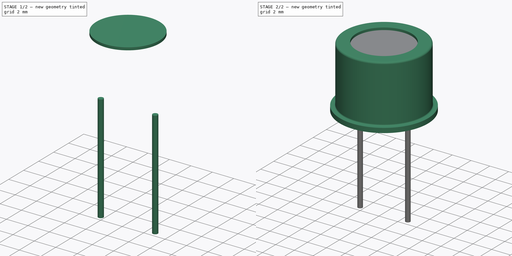
[diagram: build sequence overview — one tinted view per stage of 2, left to right]
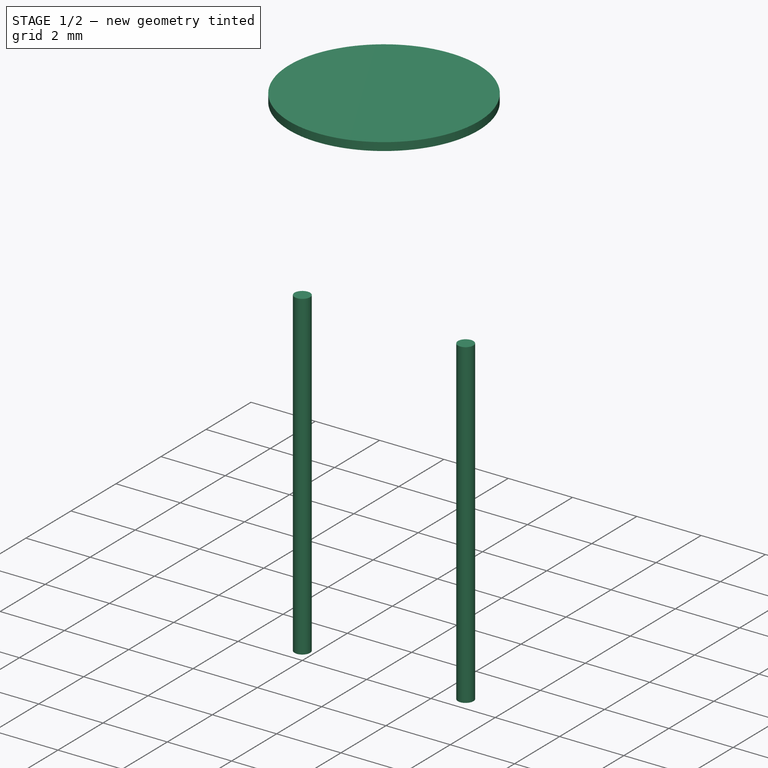
[diagram: stage 1 of 2 — iso view after this stage's code; geometry added in this stage tinted green]
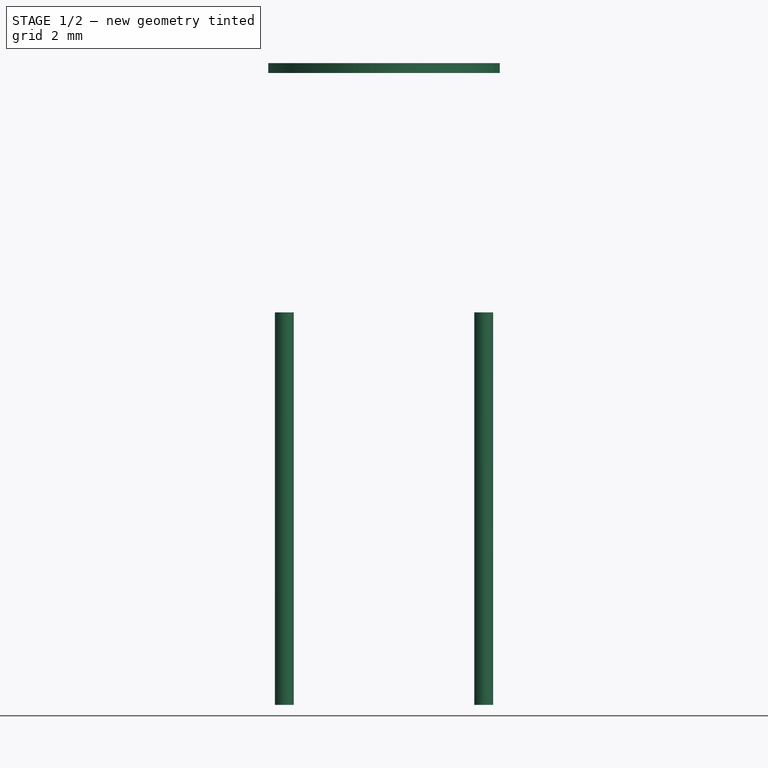
[diagram: stage 1 of 2 — front view after this stage's code; geometry added in this stage tinted green]
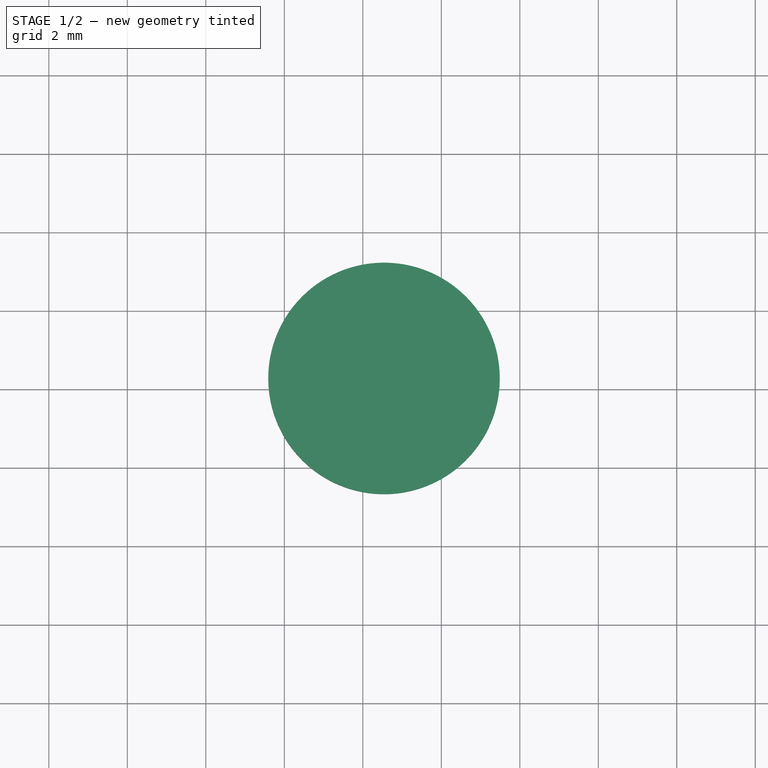
[diagram: stage 1 of 2 — top view after this stage's code; geometry added in this stage tinted green]
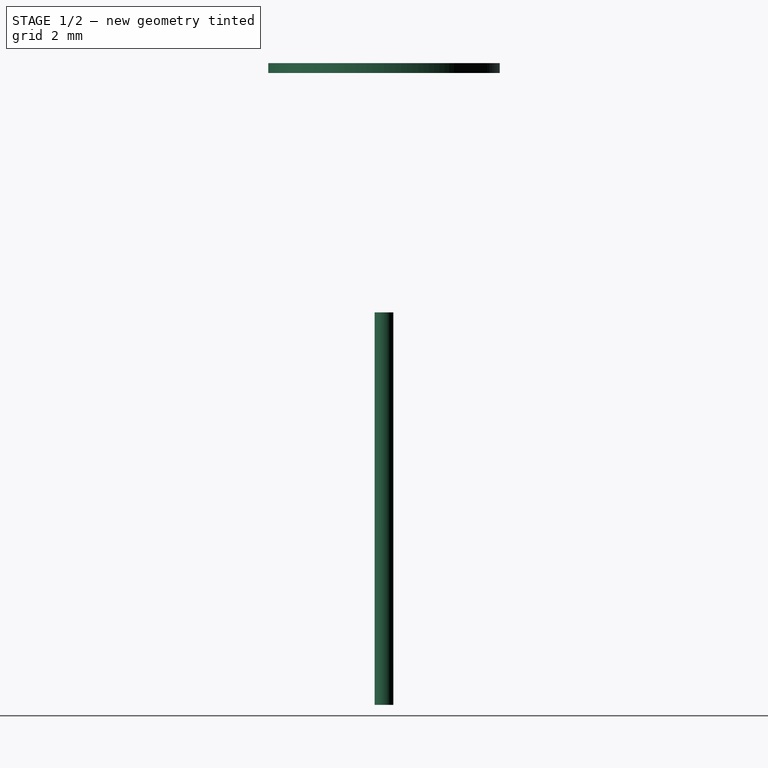
[diagram: stage 1 of 2 — right view after this stage's code; geometry added in this stage tinted green]
FCSTD DOCUMENT  (FreeCAD 0.16R6703 (Git))
Label: TO-5_Window_2Pin
License: All rights reserved
LicenseURL: http://en.wikipedia.org/wiki/All_rights_reserved
objects: Sketcher::SketchObject×4, PartDesign::Revolution×2, PartDesign::Pad×2, Spreadsheet::Sheet×1
note: 12 computed .brp shape members not serialized (recipe doc carries the construction recipe); baked Part::Feature solids carry a one-line shape summary decoded from their .brp

FEATURE [Spreadsheet::Sheet] Spreadsheet  label="dims"
  cells = A1=bottom diameter; B1(DBot)=9.4; A2=top diameter; B2(DTop)=8.5; A3=pin diameter; B3(Dpin)=5.08; A4=height; B4(height)=6.6; A5=nible; B5(nibble_w)=0.86; C5(nibble_l)=1; A6=pin diameter; B6(pin_diameter)=0.48; A7=pin length; B7(pin_length)=8; A8=pin upper length; B8(pin_upper_length)=5; A9=diameter window; B9(DWin)=5.9
FEATURE [Sketcher::SketchObject] Sketch005
  Placement = pos=(0,0,0) rot=(1,0,0;1.5708rad)
  expr: Constraints[11] = dims.DWin / 2
  expr: Constraints[1] = dims.Dpin / 2
  sketch-geometry (5):
    g0: LineSegment [constr] StartX=2.54 StartY=7.55084 StartZ=0 EndX=2.54 EndY=16.6002 EndZ=0
    g1: LineSegment StartX=2.54 StartY=11.3495 StartZ=0 EndX=-0.41 EndY=11.3495 EndZ=0
    g2: LineSegment StartX=-0.41 StartY=11.3495 StartZ=0 EndX=-0.41 EndY=11.0995 EndZ=0
    g3: LineSegment StartX=-0.41 StartY=11.0995 StartZ=0 EndX=2.54 EndY=11.0995 EndZ=0
    g4: LineSegment StartX=2.54 StartY=11.0995 StartZ=0 EndX=2.54 EndY=11.3495 EndZ=0
  constraints (13):
    c: Vertical(g0)
    c: DistanceX(g-1,g0) = 2.54
    c: Coincident(g1,g2)
    c: Coincident(g2,g3)
    c: Coincident(g3,g4)
    c: Coincident(g4,g1)
    c: Horizontal(g1)
    c: Horizontal(g3)
    c: Vertical(g2)
    c: Vertical(g4)
    c: PointOnObject(g1,g0)
    c: DistanceX(g1,g1) = 2.95
    c: DistanceY(g2,g2) = 0.25
FEATURE [PartDesign::Revolution] Revolution001
  Angle = 360
  Axis = (0,0,9.04933)
  Base = (2.54,0,7.55084)
  Placement = pos=(0,0,0) rot=(1,0,0;1.5708rad)
  ReferenceAxis = -> Sketch005 [Axis0]
  Sketch = -> Sketch005
FEATURE [PartDesign::Pad] Pad
  Length = 10
  Length2 = 100
  Placement = pos=(0,0,5) rot=(0,0,1;0rad)
  Reversed = true
  Sketch = -> Sketch
  Type = 0
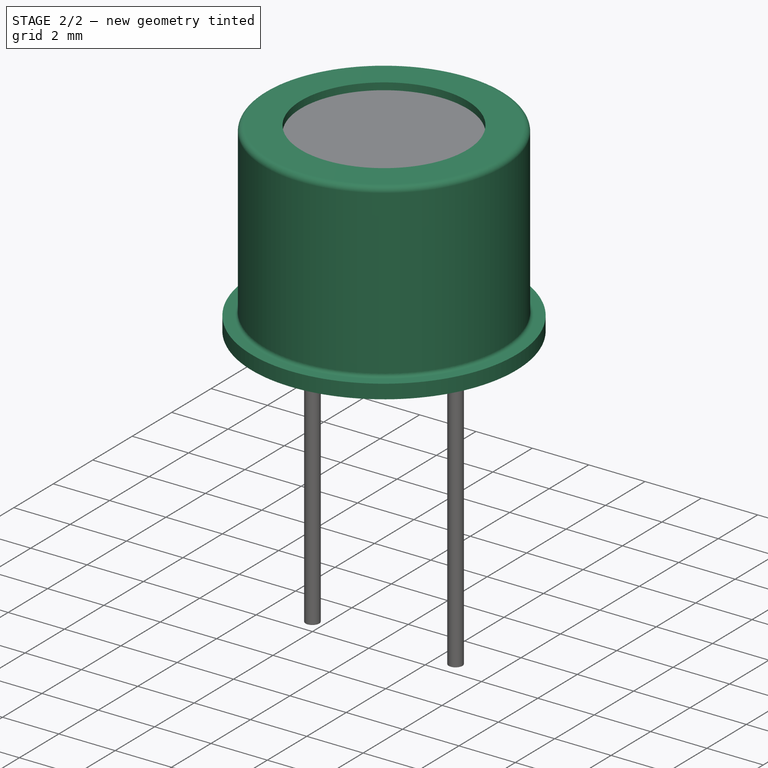
[diagram: stage 2 of 2 — iso view after this stage's code; geometry added in this stage tinted green]
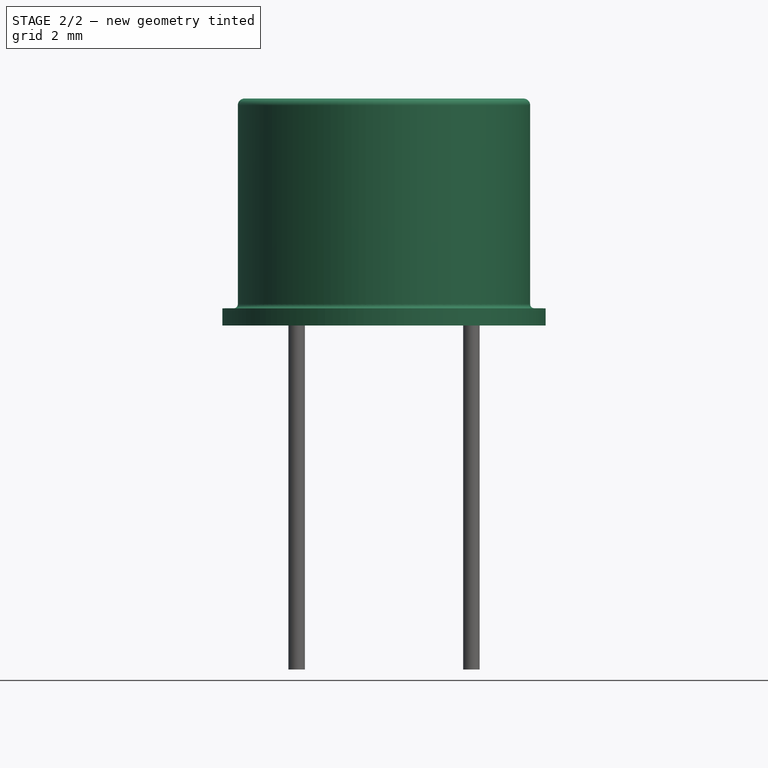
[diagram: stage 2 of 2 — front view after this stage's code; geometry added in this stage tinted green]
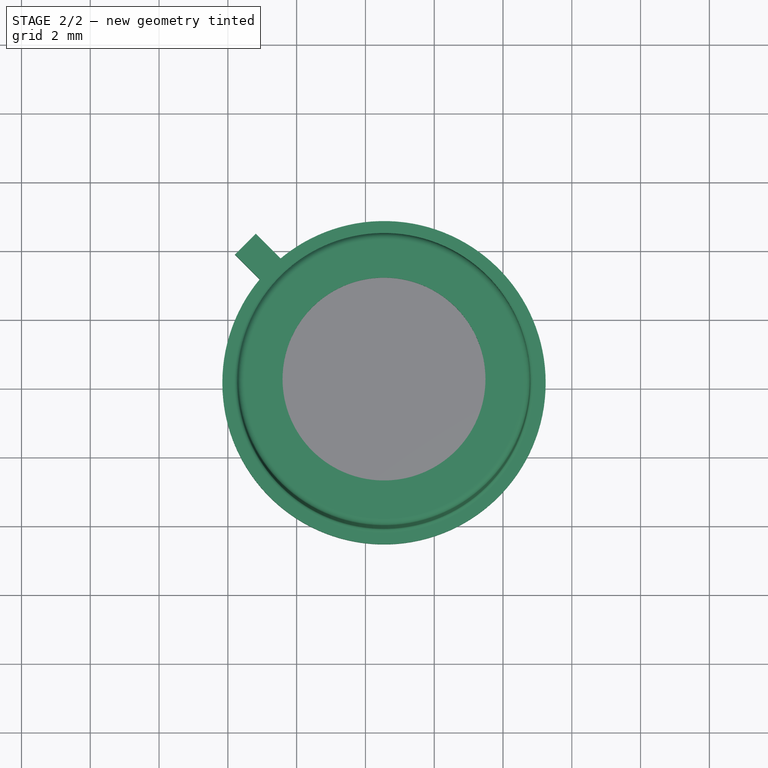
[diagram: stage 2 of 2 — top view after this stage's code; geometry added in this stage tinted green]
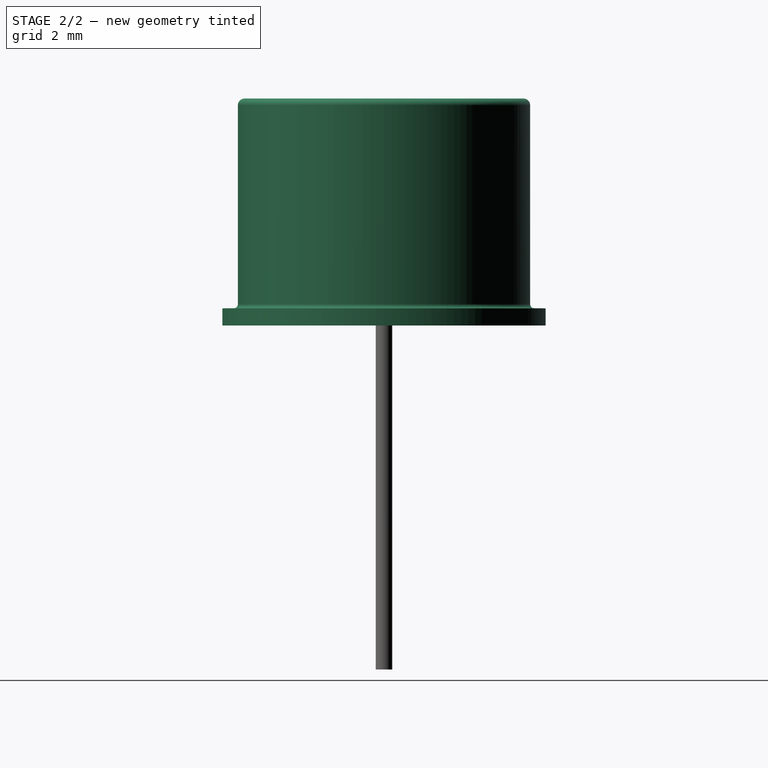
[diagram: stage 2 of 2 — right view after this stage's code; geometry added in this stage tinted green]
FEATURE [Sketcher::SketchObject] Sketch
  Placement = pos=(0,0,5) rot=(0,0,1;0rad)
  sketch-geometry (2):
    g0: Circle CenterX=0 CenterY=0 CenterZ=0 NormalX=0 NormalY=0 NormalZ=1 Radius=0.24
    g1: Circle CenterX=5.08 CenterY=0 CenterZ=0 NormalX=0 NormalY=0 NormalZ=1 Radius=0.24
  constraints (4):
    c: Coincident(g0,g-1)
    c: Radius(g0) = 0.24
    c: Equal(g1,g0)
    c: PointOnObject(g1,g-1)
FEATURE [Sketcher::SketchObject] Sketch003
  Placement = pos=(0,0,0) rot=(1,0,0;1.5708rad)
  expr: Constraints[14] = dims001.DTop / 2
  expr: Constraints[28] = dims001.DWin / 2
  expr: Constraints[8] = dims001.DBot / 2
  expr: Constraints[1] = dims001.Dpin / 2
  expr: Constraints[3] = dims001.pin_upper_length
  sketch-geometry (12):
    g0: LineSegment [constr] StartX=2.54 StartY=2.55067 StartZ=0 EndX=2.54 EndY=11.6 EndZ=0
    g1: LineSegment StartX=2.54 StartY=5 StartZ=0 EndX=-2.16 EndY=5 EndZ=0
    g2: LineSegment StartX=-2.16 StartY=5 StartZ=0 EndX=-2.16 EndY=5.5 EndZ=0
    g3: LineSegment StartX=2.54 StartY=11.6 StartZ=0 EndX=2.54 EndY=5 EndZ=0
    g4: LineSegment StartX=-2.16 StartY=5.5 StartZ=0 EndX=-1.82504 EndY=5.50275 EndZ=0
    g5: LineSegment StartX=-1.71 StartY=5.61874 StartZ=0 EndX=-1.71 EndY=11.4051 EndZ=0
    g6: ArcOfCircle CenterX=-1.51509 CenterY=11.4051 CenterZ=0 NormalX=0 NormalY=0 NormalZ=1 Radius=0.194912 StartAngle=1.5708 EndAngle=3.14159
    g7: ArcOfCircle CenterX=-1.82599 CenterY=5.61874 CenterZ=0 NormalX=0 NormalY=0 NormalZ=1 Radius=0.115993 StartAngle=4.7206 EndAngle=6.28319
    g8: LineSegment StartX=-1.51509 StartY=11.6 StartZ=0 EndX=-0.41 EndY=11.6 EndZ=0
    g9: LineSegment StartX=-0.41 StartY=11.6 StartZ=0 EndX=-0.41 EndY=5.75 EndZ=0
    g10: LineSegment StartX=-0.41 StartY=5.75 StartZ=0 EndX=2.54 EndY=5.75 EndZ=0
    g11: LineSegment StartX=2.54 StartY=5.75 StartZ=0 EndX=2.54 EndY=5 EndZ=0
  constraints (29):
    c: Vertical(g0)
    c: DistanceX(g-1,g0) = 2.54
    c: Horizontal(g1)
    c: DistanceY(g-1,g1) = 5
    c: Coincident(g2,g1)
    c: Vertical(g2)
    c: Coincident(g3,g1)
    c: DistanceY(g2,g2) = 0.5
    c: DistanceX(g1,g1) = 4.7
    c: Coincident(g4,g2)
    c: Vertical(g5)
    c: Tangent(g5,g6) = 1.5708
    c: Tangent(g4,g7) = -1.5708
    c: Tangent(g5,g7) = -1.5708
    c: DistanceX(g5,g0) = 4.25
    c: Vertical(g3)
    c: Coincident(g0,g3)
    c: Coincident(g8,g6)
    c: Horizontal(g8)
    c: Coincident(g9,g8)
    c: Vertical(g9)
    c: Coincident(g10,g9)
    c: PointOnObject(g10,g0)
    c: Horizontal(g10)
    c: Coincident(g11,g10)
    c: Coincident(g11,g1)
    c: DistanceY(g1,g8) = 6.6
    c: DistanceY(g1,g9) = 0.75
    c: DistanceX(g8,g0) = 2.95
FEATURE [PartDesign::Revolution] Revolution
  Angle = 360
  Axis = (0,0,9.04933)
  Base = (2.54,0,2.55067)
  Placement = pos=(0,0,0) rot=(1,0,0;1.5708rad)
  ReferenceAxis = -> Sketch003 [Axis0]
  Sketch = -> Sketch003
FEATURE [Sketcher::SketchObject] Sketch004
  Placement = pos=(0,0,5) rot=(0,0,1;0rad)
  expr: Constraints[1] = dims001.Dpin / 2
  expr: Constraints[10] = dims001.nibble_w
  expr: Constraints[11] = dims001.DBot / 2 + dims001.nibble_l
  sketch-geometry (5):
    g0: GeomPoint [constr] X=2.54 Y=0 Z=0
    g1: LineSegment StartX=2.84406 StartY=0.304056 StartZ=0 EndX=-1.18645 EndY=4.33456 EndZ=0
    g2: LineSegment StartX=2.23594 StartY=-0.304056 StartZ=0 EndX=-1.79456 EndY=3.72645 EndZ=0
    g3: LineSegment StartX=-1.79456 StartY=3.72645 StartZ=0 EndX=-1.18645 EndY=4.33456 EndZ=0
    g4: LineSegment StartX=2.23594 StartY=-0.304056 StartZ=0 EndX=2.84406 EndY=0.304056 EndZ=0
  constraints (14):
    c: PointOnObject(g0,g-1)
    c: DistanceX(g-1,g0) = 2.54
    c: Coincident(g3,g2)
    c: Coincident(g3,g1)
    c: Coincident(g4,g2)
    c: Coincident(g4,g1)
    c: PointOnObject(g0,g4)
    c: Parallel(g4,g3)
    c: Parallel(g2,g1)
    c: Perpendicular(g2,g3)
    c: Distance(g3) = 0.86
    c: Distance(g1) = 5.7
    c: Symmetric(g4,g4,g0)
    c: Angle(g4,g-1) = 2.35619
FEATURE [PartDesign::Pad] Pad003
  Length = 0.5
  Length2 = 100
  Placement = pos=(0,0,5) rot=(0,0,1;0rad)
  Sketch = -> Sketch004
  Type = 0
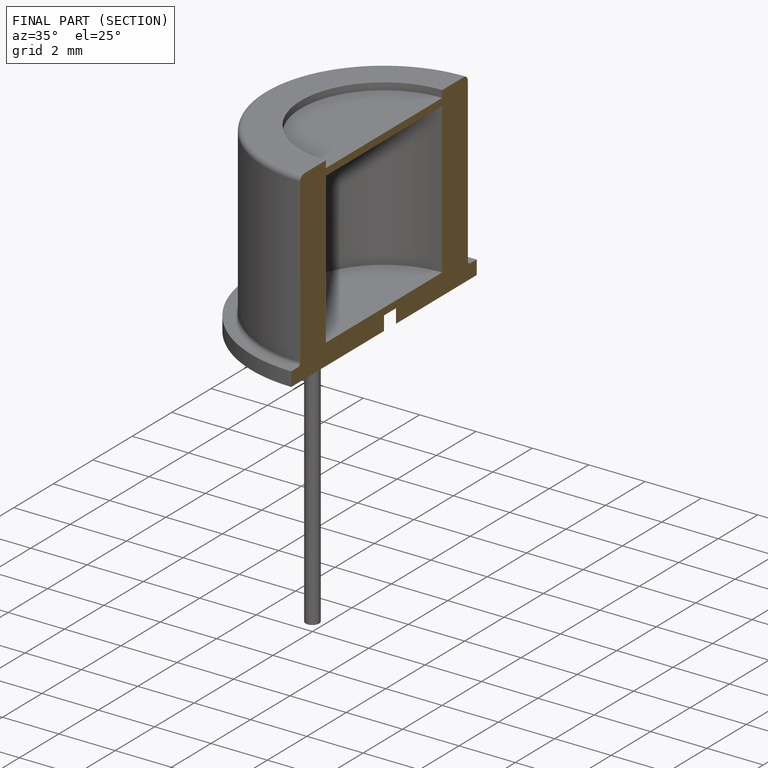
[diagram: finished part — half-section view (interior)]
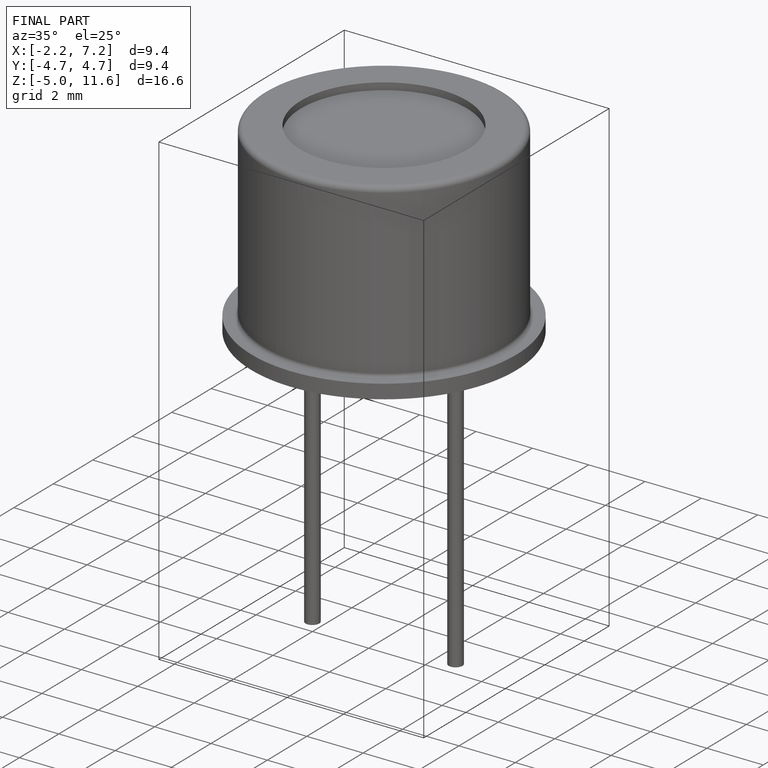
[diagram: finished part — iso view with bounding-box wireframe]
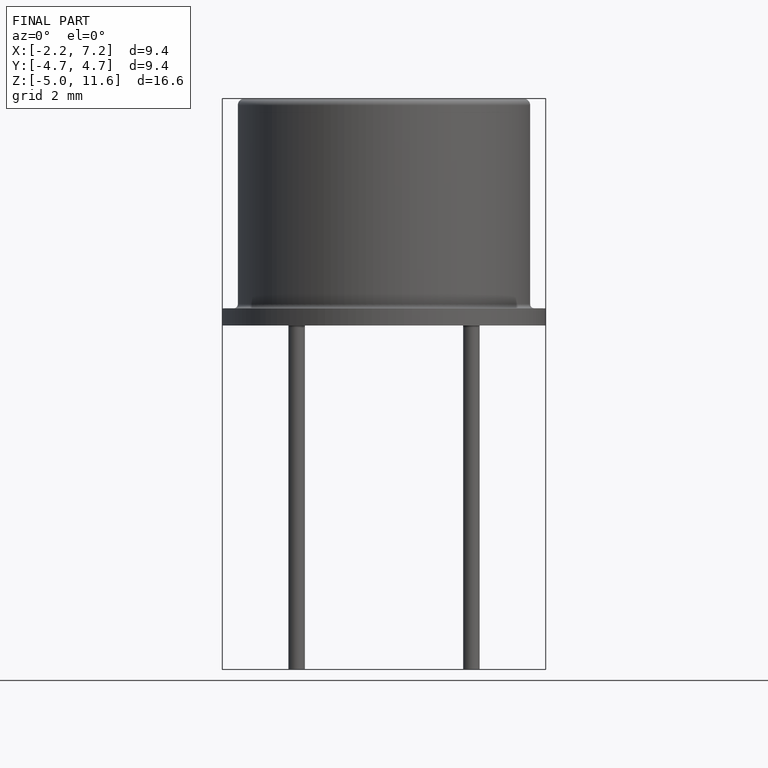
[diagram: finished part — front view with bounding-box wireframe]
